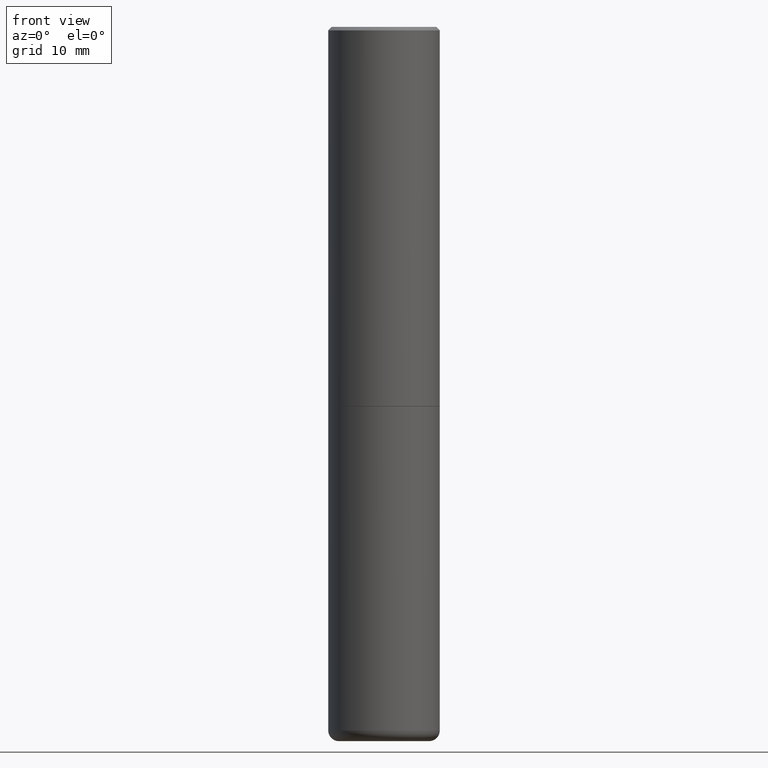
[diagram: clean part render]
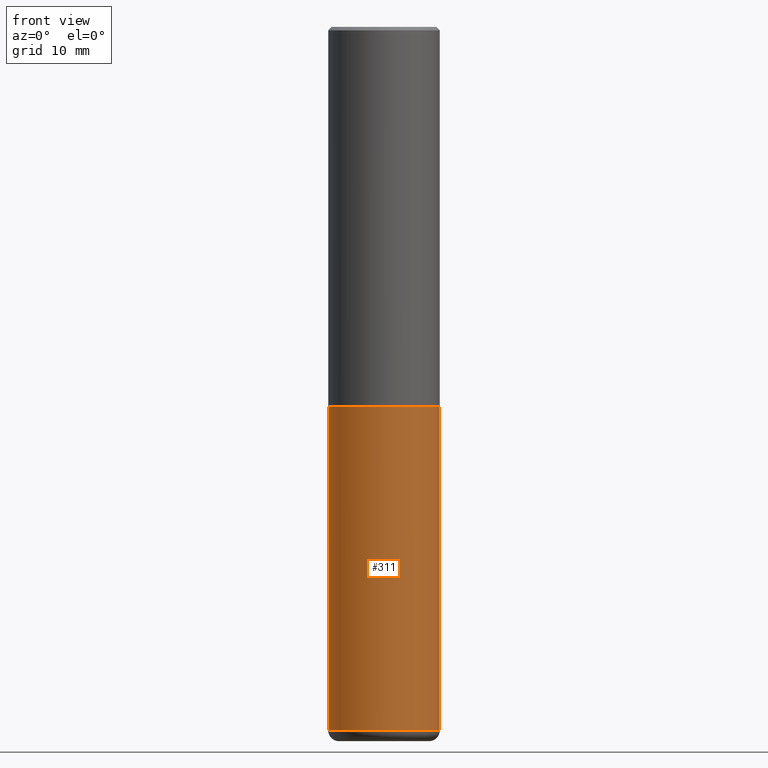
[diagram: same view with one face highlighted and labeled with its STEP entity id]
A machine part, front view. The second image highlights one B-rep face of the part: STEP entity #311.
In plain terms, the highlighted cylindrical surface (partial cylindrical patch) has radius 7.9375 mm, axis along (-0, 0, 1).
Its self-contained STEP definition (entity closure, byte-faithful):
#21 = CARTESIAN_POINT ( 'NONE',  ( 5.196621213143415268E-29, -7.419397845041683624E-15, -2.125000000000000000 ) ) ;
#24 = VERTEX_POINT ( 'NONE', #129 ) ;
#62 = EDGE_LOOP ( 'NONE', ( #365, #82, #215, #249 ) ) ;
#77 = CYLINDRICAL_SURFACE ( 'NONE', #80, 0.3125000000000000000 ) ;
#78 = DIRECTION ( 'NONE',  ( -2.445468806185136877E-29, 3.491481338843145188E-15, 1.000000000000000000 ) ) ;
#80 = AXIS2_PLACEMENT_3D ( 'NONE', #374, #342, #244 ) ;
#82 = ORIENTED_EDGE ( 'NONE', *, *, #377, .T. ) ;
#98 = AXIS2_PLACEMENT_3D ( 'NONE', #21, #146, #240 ) ;
#106 = DIRECTION ( 'NONE',  ( 1.000000000000000000, -6.982962677686269077E-15, 0.000000000000000000 ) ) ;
#129 = CARTESIAN_POINT ( 'NONE',  ( 0.3125000000000000000, -9.601573681818641971E-15, -2.125000000000000000 ) ) ;
#132 = CARTESIAN_POINT ( 'NONE',  ( 9.635147096369438236E-29, -1.375643647504199401E-14, -3.939999999999999947 ) ) ;
#134 = DIRECTION ( 'NONE',  ( -2.445468806185136597E-29, 3.491481338843145583E-15, 1.000000000000000000 ) ) ;
#136 = AXIS2_PLACEMENT_3D ( 'NONE', #132, #134, #106 ) ;
#146 = DIRECTION ( 'NONE',  ( -2.445468806185136597E-29, 3.491481338843145583E-15, 1.000000000000000000 ) ) ;
#164 = CIRCLE ( 'NONE', #98, 0.3125000000000000000 ) ;
#165 = CARTESIAN_POINT ( 'NONE',  ( -0.3125000000000001665, -1.153599042579167936E-14, -3.939999999999999947 ) ) ;
#182 = EDGE_CURVE ( 'NONE', #382, #352, #398, .T. ) ;
#192 = LINE ( 'NONE', #403, #316 ) ;
#209 = CARTESIAN_POINT ( 'NONE',  ( -0.3125000000000000000, -8.367471110791524949E-15, -2.125000000000000000 ) ) ;
#215 = ORIENTED_EDGE ( 'NONE', *, *, #299, .T. ) ;
#227 = VERTEX_POINT ( 'NONE', #381 ) ;
#240 = DIRECTION ( 'NONE',  ( 1.000000000000000000, -6.982962677686269077E-15, 0.000000000000000000 ) ) ;
#244 = DIRECTION ( 'NONE',  ( 1.000000000000000000, -6.982962677686266711E-15, 4.876176775795936353E-29 ) ) ;
#246 = DIRECTION ( 'NONE',  ( -2.445468806185136877E-29, 3.491481338843145188E-15, 1.000000000000000000 ) ) ;
#249 = ORIENTED_EDGE ( 'NONE', *, *, #326, .F. ) ;
#299 = EDGE_CURVE ( 'NONE', #227, #24, #192, .T. ) ;
#309 = VECTOR ( 'NONE', #78, 39.37007874015748143 ) ;
#311 = ADVANCED_FACE ( 'NONE', ( #380 ), #77, .T. ) ;
#316 = VECTOR ( 'NONE', #246, 39.37007874015748143 ) ;
#326 = EDGE_CURVE ( 'NONE', #352, #24, #164, .T. ) ;
#342 = DIRECTION ( 'NONE',  ( -2.445468806185136597E-29, 3.491481338843145583E-15, 1.000000000000000000 ) ) ;
#352 = VERTEX_POINT ( 'NONE', #209 ) ;
#365 = ORIENTED_EDGE ( 'NONE', *, *, #182, .F. ) ;
#373 = CARTESIAN_POINT ( 'NONE',  ( -0.3125000000000000000, 2.220446049250313081E-15, -1.537167215704658232E-29 ) ) ;
#374 = CARTESIAN_POINT ( 'NONE',  ( 0.000000000000000000, 0.000000000000000000, 0.000000000000000000 ) ) ;
#377 = EDGE_CURVE ( 'NONE', #382, #227, #389, .T. ) ;
#380 = FACE_OUTER_BOUND ( 'NONE', #62, .T. ) ;
#381 = CARTESIAN_POINT ( 'NONE',  ( 0.3125000000000001665, -1.593861231181895394E-14, -3.939999999999999947 ) ) ;
#382 = VERTEX_POINT ( 'NONE', #165 ) ;
#389 = CIRCLE ( 'NONE', #136, 0.3125000000000000000 ) ;
#398 = LINE ( 'NONE', #373, #309 ) ;
#403 = CARTESIAN_POINT ( 'NONE',  ( 0.3125000000000000000, -2.182175836776958347E-15, 1.523805242436230075E-29 ) ) ;